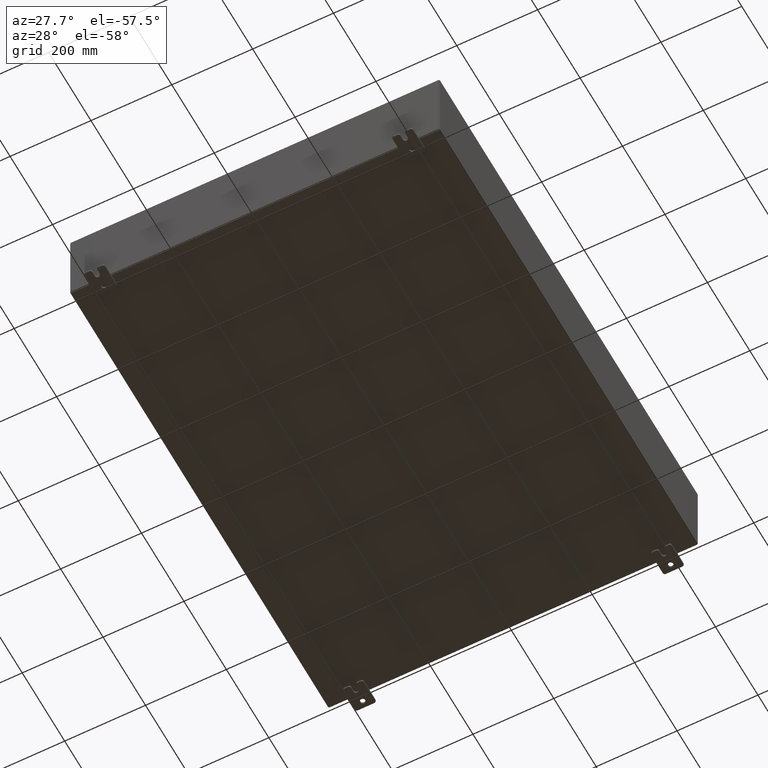
[diagram: clean part render]
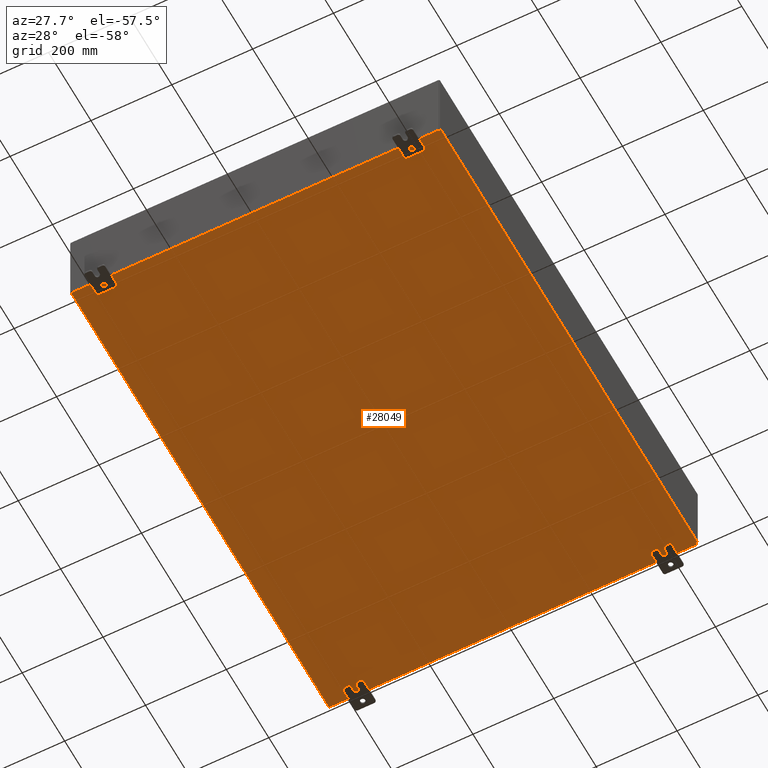
[diagram: same view with one face highlighted and labeled with its STEP entity id]
A machine part, auxiliary view. The second image highlights one B-rep face of the part: STEP entity #28049.
In plain terms, the highlighted planar face has unit normal (0, 0, -1).
Its self-contained STEP definition (entity closure, byte-faithful):
#2266 = CARTESIAN_POINT ( 'NONE',  ( 0.0000000000000000000, 0.0000000000000000000, -0.07470000000000000300 ) ) ;
#10411 = CARTESIAN_POINT ( 'NONE',  ( -18.00000000000000400, 23.92530000000000000, -0.07470000000000000300 ) ) ;
#12652 = DIRECTION ( 'NONE',  ( 0.0000000000000000000, 0.0000000000000000000, -1.000000000000000000 ) ) ;
#13339 = FACE_OUTER_BOUND ( 'NONE', #82240, .T. ) ;
#14199 = EDGE_CURVE ( 'NONE', #61751, #70352, #52115, .T. ) ;
#16406 = AXIS2_PLACEMENT_3D ( 'NONE', #2266, #12652, #85257 ) ;
#20866 = DIRECTION ( 'NONE',  ( -1.000000000000000000, -0.0000000000000000000, -0.0000000000000000000 ) ) ;
#22734 = LINE ( 'NONE', #10411, #47018 ) ;
#24585 = VECTOR ( 'NONE', #121116, 39.37007874015748100 ) ;
#27747 = CARTESIAN_POINT ( 'NONE',  ( -18.00000000000000400, -23.92530000000000400, -0.07470000000000000300 ) ) ;
#28049 = ADVANCED_FACE ( 'NONE', ( #13339 ), #64329, .T. ) ;
#30462 = EDGE_CURVE ( 'NONE', #61751, #34240, #43785, .T. ) ;
#34207 = LINE ( 'NONE', #45798, #89368 ) ;
#34240 = VERTEX_POINT ( 'NONE', #107583 ) ;
#40580 = ORIENTED_EDGE ( 'NONE', *, *, #14199, .F. ) ;
#43785 = LINE ( 'NONE', #101360, #95814 ) ;
#45798 = CARTESIAN_POINT ( 'NONE',  ( 17.91229999999999500, 23.92529999999998900, -0.07469999999999688000 ) ) ;
#47018 = VECTOR ( 'NONE', #20866, 39.37007874015748100 ) ;
#52115 = LINE ( 'NONE', #27747, #24585 ) ;
#61196 = CARTESIAN_POINT ( 'NONE',  ( -17.91230000000000500, -23.92529999999998600, -0.07469999999999994700 ) ) ;
#61751 = VERTEX_POINT ( 'NONE', #61196 ) ;
#64329 = PLANE ( 'NONE',  #16406 ) ;
#70352 = VERTEX_POINT ( 'NONE', #79545 ) ;
#76230 = CARTESIAN_POINT ( 'NONE',  ( 17.91229999999999500, 23.92529999999998600, -0.07469999999999688000 ) ) ;
#79545 = CARTESIAN_POINT ( 'NONE',  ( 17.91229999999999500, -23.92530000000000000, -0.07470000000000000300 ) ) ;
#81293 = ORIENTED_EDGE ( 'NONE', *, *, #91445, .F. ) ;
#82240 = EDGE_LOOP ( 'NONE', ( #40580, #123549, #81293, #102127 ) ) ;
#85257 = DIRECTION ( 'NONE',  ( -1.000000000000000000, 0.0000000000000000000, -0.0000000000000000000 ) ) ;
#89368 = VECTOR ( 'NONE', #118380, 39.37007874015748100 ) ;
#90953 = DIRECTION ( 'NONE',  ( -0.0000000000000000000, 1.000000000000000000, -0.0000000000000000000 ) ) ;
#91445 = EDGE_CURVE ( 'NONE', #109170, #34240, #22734, .T. ) ;
#95814 = VECTOR ( 'NONE', #90953, 39.37007874015748100 ) ;
#101360 = CARTESIAN_POINT ( 'NONE',  ( -17.91230000000000500, -23.92529999999998900, -0.07469999999999994700 ) ) ;
#102127 = ORIENTED_EDGE ( 'NONE', *, *, #129724, .T. ) ;
#107583 = CARTESIAN_POINT ( 'NONE',  ( -17.91230000000000500, 23.92529999999998900, -0.07470000000000000300 ) ) ;
#109170 = VERTEX_POINT ( 'NONE', #76230 ) ;
#118380 = DIRECTION ( 'NONE',  ( -0.0000000000000000000, -1.000000000000000000, -8.208677865577646300E-017 ) ) ;
#121116 = DIRECTION ( 'NONE',  ( 1.000000000000000000, 1.214154663850783700E-016, 0.0000000000000000000 ) ) ;
#123549 = ORIENTED_EDGE ( 'NONE', *, *, #30462, .T. ) ;
#129724 = EDGE_CURVE ( 'NONE', #109170, #70352, #34207, .T. ) ;